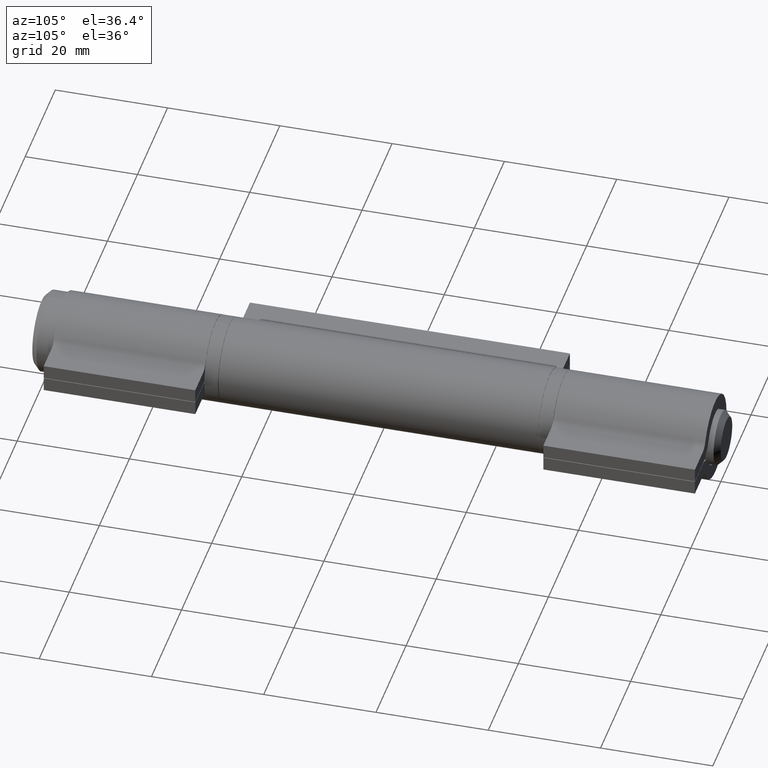
[diagram: clean part render]
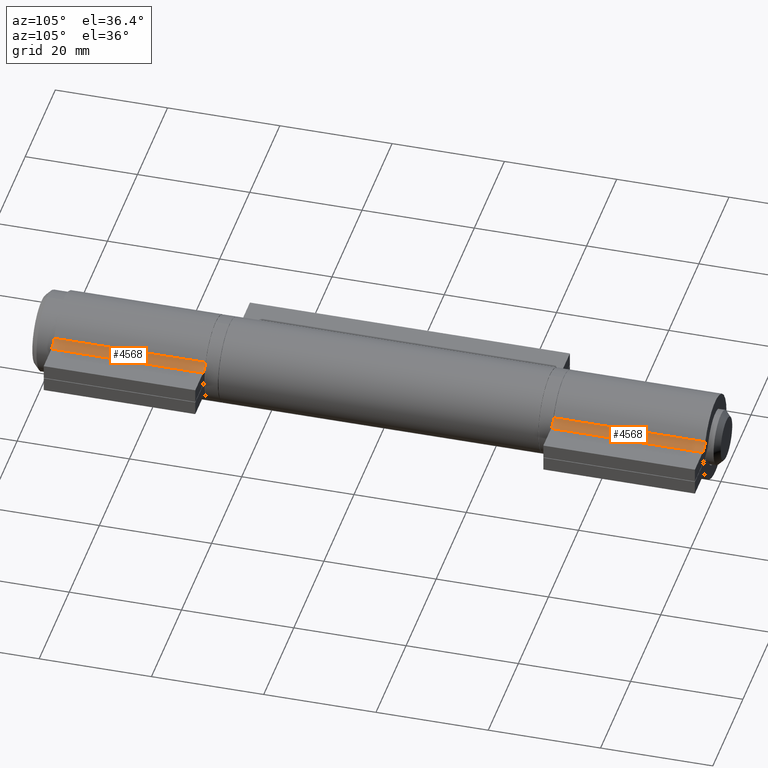
[diagram: same view with one multi-face feature highlighted, each face labeled with its STEP entity id]
A machine part, auxiliary view. The highlighted faces form ONE feature: a constant-radius fillet chain: 2 tangent blend faces with common blend radius 2 mm. The faces share edges in the B-rep.
Their STEP definitions:
[1] entity #4568 (Cylinder):
#123 = VERTEX_POINT ( 'NONE', #6884 ) ;
#638 = ORIENTED_EDGE ( 'NONE', *, *, #2779, .T. ) ;
#729 = LINE ( 'NONE', #3076, #2741 ) ;
#779 = ORIENTED_EDGE ( 'NONE', *, *, #11094, .F. ) ;
#1149 = DIRECTION ( 'NONE',  ( 0.000000000000000000, 0.000000000000000000, -1.000000000000000000 ) ) ;
#1610 = CIRCLE ( 'NONE', #9604, 2.000000000000000000 ) ;
#2356 = CYLINDRICAL_SURFACE ( 'NONE', #9923, 2.000000000000000000 ) ;
#2438 = EDGE_CURVE ( 'NONE', #123, #4929, #11555, .T. ) ;
#2741 = VECTOR ( 'NONE', #9602, 1000.000000000000000 ) ;
#2779 = EDGE_CURVE ( 'NONE', #10016, #4929, #1610, .T. ) ;
#3076 = CARTESIAN_POINT ( 'NONE',  ( 3.592105263157894246, 13.50000000000000000, -6.583827137645197780 ) ) ;
#3490 = EDGE_LOOP ( 'NONE', ( #638, #6137, #779, #6404 ) ) ;
#3535 = CARTESIAN_POINT ( 'NONE',  ( 4.549999999999998934, 13.50000000000000000, -8.339514374350583736 ) ) ;
#3794 = DIRECTION ( 'NONE',  ( -0.000000000000000000, -1.000000000000000000, 0.000000000000000000 ) ) ;
#3825 = DIRECTION ( 'NONE',  ( -0.000000000000000000, -1.000000000000000000, 0.000000000000000000 ) ) ;
#4287 = DIRECTION ( 'NONE',  ( -0.000000000000000000, -1.000000000000000000, -0.000000000000000000 ) ) ;
#4298 = VECTOR ( 'NONE', #7761, 1000.000000000000000 ) ;
#4568 = ADVANCED_FACE ( 'NONE', ( #7832 ), #2356, .F. ) ;
#4677 = DIRECTION ( 'NONE',  ( 0.000000000000000000, 0.000000000000000000, -1.000000000000000000 ) ) ;
#4929 = VERTEX_POINT ( 'NONE', #10737 ) ;
#6137 = ORIENTED_EDGE ( 'NONE', *, *, #2438, .F. ) ;
#6404 = ORIENTED_EDGE ( 'NONE', *, *, #8483, .T. ) ;
#6560 = CIRCLE ( 'NONE', #7684, 2.000000000000000000 ) ;
#6696 = CARTESIAN_POINT ( 'NONE',  ( 3.592105263157894246, -13.50000000000000000, -6.583827137645197780 ) ) ;
#6816 = VERTEX_POINT ( 'NONE', #9182 ) ;
#6884 = CARTESIAN_POINT ( 'NONE',  ( 2.549999999999999378, 13.50000000000000000, -8.339514374350583736 ) ) ;
#7473 = CARTESIAN_POINT ( 'NONE',  ( 4.549999999999998934, 13.50000000000000000, -8.339514374350583736 ) ) ;
#7684 = AXIS2_PLACEMENT_3D ( 'NONE', #7473, #3794, #1149 ) ;
#7761 = DIRECTION ( 'NONE',  ( -0.000000000000000000, -1.000000000000000000, -0.000000000000000000 ) ) ;
#7832 = FACE_OUTER_BOUND ( 'NONE', #3490, .T. ) ;
#7847 = CARTESIAN_POINT ( 'NONE',  ( 2.549999999999999378, 13.50000000000000000, -8.339514374350583736 ) ) ;
#8483 = EDGE_CURVE ( 'NONE', #6816, #10016, #729, .T. ) ;
#9182 = CARTESIAN_POINT ( 'NONE',  ( 3.592105263157894246, 13.50000000000000000, -6.583827137645197780 ) ) ;
#9602 = DIRECTION ( 'NONE',  ( -0.000000000000000000, -1.000000000000000000, -0.000000000000000000 ) ) ;
#9604 = AXIS2_PLACEMENT_3D ( 'NONE', #10247, #3825, #4677 ) ;
#9923 = AXIS2_PLACEMENT_3D ( 'NONE', #3535, #4287, #10792 ) ;
#10016 = VERTEX_POINT ( 'NONE', #6696 ) ;
#10247 = CARTESIAN_POINT ( 'NONE',  ( 4.549999999999998934, -13.50000000000000000, -8.339514374350583736 ) ) ;
#10737 = CARTESIAN_POINT ( 'NONE',  ( 2.549999999999999378, -13.50000000000000000, -8.339514374350583736 ) ) ;
#10792 = DIRECTION ( 'NONE',  ( 0.000000000000000000, 0.000000000000000000, -1.000000000000000000 ) ) ;
#11094 = EDGE_CURVE ( 'NONE', #6816, #123, #6560, .T. ) ;
#11555 = LINE ( 'NONE', #7847, #4298 ) ;
[2] entity #4568 (Cylinder):
#123 = VERTEX_POINT ( 'NONE', #6884 ) ;
#638 = ORIENTED_EDGE ( 'NONE', *, *, #2779, .T. ) ;
#729 = LINE ( 'NONE', #3076, #2741 ) ;
#779 = ORIENTED_EDGE ( 'NONE', *, *, #11094, .F. ) ;
#1149 = DIRECTION ( 'NONE',  ( 0.000000000000000000, 0.000000000000000000, -1.000000000000000000 ) ) ;
#1610 = CIRCLE ( 'NONE', #9604, 2.000000000000000000 ) ;
#2356 = CYLINDRICAL_SURFACE ( 'NONE', #9923, 2.000000000000000000 ) ;
#2438 = EDGE_CURVE ( 'NONE', #123, #4929, #11555, .T. ) ;
#2741 = VECTOR ( 'NONE', #9602, 1000.000000000000000 ) ;
#2779 = EDGE_CURVE ( 'NONE', #10016, #4929, #1610, .T. ) ;
#3076 = CARTESIAN_POINT ( 'NONE',  ( 3.592105263157894246, 13.50000000000000000, -6.583827137645197780 ) ) ;
#3490 = EDGE_LOOP ( 'NONE', ( #638, #6137, #779, #6404 ) ) ;
#3535 = CARTESIAN_POINT ( 'NONE',  ( 4.549999999999998934, 13.50000000000000000, -8.339514374350583736 ) ) ;
#3794 = DIRECTION ( 'NONE',  ( -0.000000000000000000, -1.000000000000000000, 0.000000000000000000 ) ) ;
#3825 = DIRECTION ( 'NONE',  ( -0.000000000000000000, -1.000000000000000000, 0.000000000000000000 ) ) ;
#4287 = DIRECTION ( 'NONE',  ( -0.000000000000000000, -1.000000000000000000, -0.000000000000000000 ) ) ;
#4298 = VECTOR ( 'NONE', #7761, 1000.000000000000000 ) ;
#4568 = ADVANCED_FACE ( 'NONE', ( #7832 ), #2356, .F. ) ;
#4677 = DIRECTION ( 'NONE',  ( 0.000000000000000000, 0.000000000000000000, -1.000000000000000000 ) ) ;
#4929 = VERTEX_POINT ( 'NONE', #10737 ) ;
#6137 = ORIENTED_EDGE ( 'NONE', *, *, #2438, .F. ) ;
#6404 = ORIENTED_EDGE ( 'NONE', *, *, #8483, .T. ) ;
#6560 = CIRCLE ( 'NONE', #7684, 2.000000000000000000 ) ;
#6696 = CARTESIAN_POINT ( 'NONE',  ( 3.592105263157894246, -13.50000000000000000, -6.583827137645197780 ) ) ;
#6816 = VERTEX_POINT ( 'NONE', #9182 ) ;
#6884 = CARTESIAN_POINT ( 'NONE',  ( 2.549999999999999378, 13.50000000000000000, -8.339514374350583736 ) ) ;
#7473 = CARTESIAN_POINT ( 'NONE',  ( 4.549999999999998934, 13.50000000000000000, -8.339514374350583736 ) ) ;
#7684 = AXIS2_PLACEMENT_3D ( 'NONE', #7473, #3794, #1149 ) ;
#7761 = DIRECTION ( 'NONE',  ( -0.000000000000000000, -1.000000000000000000, -0.000000000000000000 ) ) ;
#7832 = FACE_OUTER_BOUND ( 'NONE', #3490, .T. ) ;
#7847 = CARTESIAN_POINT ( 'NONE',  ( 2.549999999999999378, 13.50000000000000000, -8.339514374350583736 ) ) ;
#8483 = EDGE_CURVE ( 'NONE', #6816, #10016, #729, .T. ) ;
#9182 = CARTESIAN_POINT ( 'NONE',  ( 3.592105263157894246, 13.50000000000000000, -6.583827137645197780 ) ) ;
#9602 = DIRECTION ( 'NONE',  ( -0.000000000000000000, -1.000000000000000000, -0.000000000000000000 ) ) ;
#9604 = AXIS2_PLACEMENT_3D ( 'NONE', #10247, #3825, #4677 ) ;
#9923 = AXIS2_PLACEMENT_3D ( 'NONE', #3535, #4287, #10792 ) ;
#10016 = VERTEX_POINT ( 'NONE', #6696 ) ;
#10247 = CARTESIAN_POINT ( 'NONE',  ( 4.549999999999998934, -13.50000000000000000, -8.339514374350583736 ) ) ;
#10737 = CARTESIAN_POINT ( 'NONE',  ( 2.549999999999999378, -13.50000000000000000, -8.339514374350583736 ) ) ;
#10792 = DIRECTION ( 'NONE',  ( 0.000000000000000000, 0.000000000000000000, -1.000000000000000000 ) ) ;
#11094 = EDGE_CURVE ( 'NONE', #6816, #123, #6560, .T. ) ;
#11555 = LINE ( 'NONE', #7847, #4298 ) ;